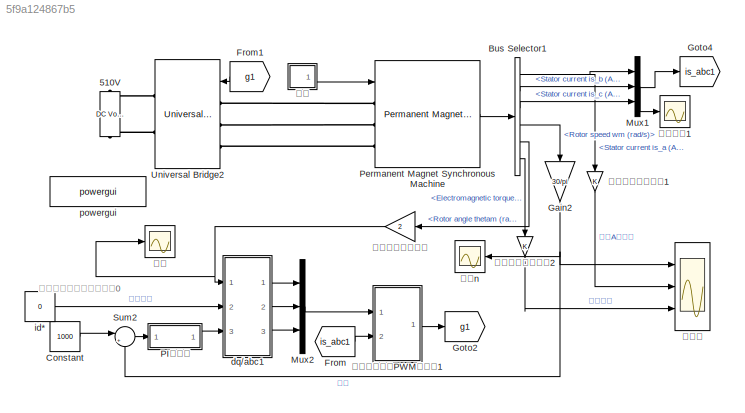
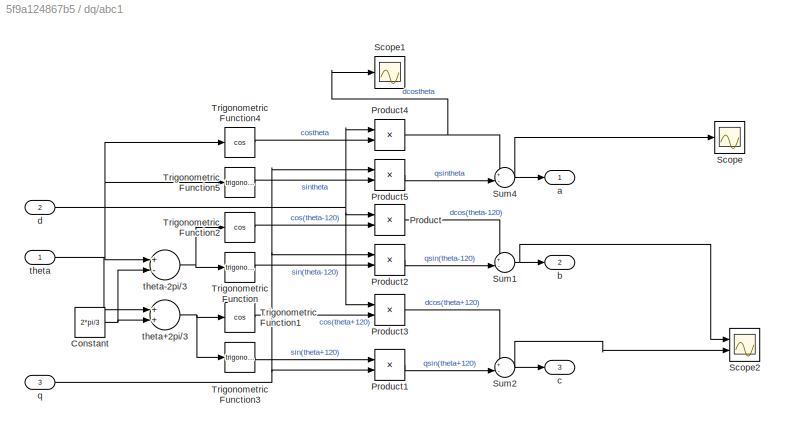
MODEL slx_5f9a124867b5
KIND model
CONFIG AbsTol = auto
CONFIG EnableMultiTasking = off
CONFIG FixedStep = auto
CONFIG MaxStep = 1e-4
CONFIG MinStep = auto
CONFIG RelTol = 1e-3
CONFIG SampleTimeConstraint = Unconstrained
CONFIG Solver = ode23tb
CONFIG SolverName = ode23tb
CONFIG StartTime = 0.0
CONFIG StopTime = 6
BLOCK [Reference] 510V  REF=powerlib/Electrical
Sources/DC Voltage Source
  Ports = [0, 0, 0, 0, 0, 1, 1]
  SourceBlock = powerlib/Electrical\nSources/DC Voltage Source
  SourceProductBaseCode = PS
  SourceProductName = Simscape Power Systems
  SourceType = DC Voltage Source
BLOCK [BusSelector] Bus Selector1
  OutputAsBus = off
  OutputSignals = Stator current is_a (A),Stator current is_b (A),Stator current is_c (A),Rotor speed wm (rad/s),Rotor angle thetam (rad),Electromagnetic torque Te (N*m)
  Ports = [1, 6]
BLOCK [Constant] Constant
  Value = 1000
BLOCK [From] From
  GotoTag = is_abc1
BLOCK [From] From1
  GotoTag = g1
BLOCK [Gain] Gain2
  Gain = 30/pi
  OutDataTypeStr = Inherit: Inherit via internal rule
  ParamDataTypeStr = Inherit: Inherit via internal rule
  SaturateOnIntegerOverflow = off
BLOCK [Goto] Goto2
  GotoTag = g1
BLOCK [Goto] Goto4
  GotoTag = is_abc1
BLOCK [Mux] Mux1
  DisplayOption = bar
  Inputs = 3
  Ports = [3, 1]
BLOCK [Mux] Mux2
  DisplayOption = bar
  Inputs = 3
  Ports = [3, 1]
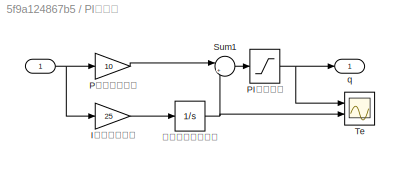
BLOCK [SubSystem] PI调节器
  Ports = [1, 1]
  RequestExecContextInheritance = off
  Variant = off
BLOCK [Inport] PI调节器/  
  IconDisplay = Port number
BLOCK [Gain] PI调节器/I积分放大倍数
  Gain = 25
  OutDataTypeStr = Inherit: Inherit via internal rule
  ParamDataTypeStr = Inherit: Inherit via internal rule
  SaturateOnIntegerOverflow = off
BLOCK [Saturate] PI调节器/PI输出限幅
  InputPortMap = u0
  LowerLimit = -500
  Ports = [1, 1]
  UpperLimit = 500
BLOCK [Gain] PI调节器/P比例放大倍数
  Gain = 10
  OutDataTypeStr = Inherit: Inherit via internal rule
  ParamDataTypeStr = Inherit: Inherit via internal rule
  SaturateOnIntegerOverflow = off
BLOCK [Sum] PI调节器/Sum1
  IconShape = round
  InputSameDT = off
  Inputs = |++
  OutDataTypeStr = Inherit: Inherit via internal rule
  Ports = [2, 1]
  SaturateOnIntegerOverflow = off
BLOCK [Scope] PI调节器/Te
  NumInputPorts = 2
  Ports = [2]
  ScopeSpecificationString = Simulink.scopes.TimeScopeBlockCfg('CurrentConfiguration', extmgr.ConfigurationSet(extmgr.Configuration('Core','General UI',true),extmgr.Configuration('Core','Source UI',true),extmgr.Configuration('Sources','WiredSimulink',true,'DataLoggingVariableName','ScopeData1'),extmgr.Configuration('Visuals','Time Domain',true,'SerializedDisplays',{struct('MinYLimReal','-225.00000','MaxYLimReal','2025.00000',...<+1465ch>
BLOCK [Outport] PI调节器/q
  IconDisplay = Port number
BLOCK [Integrator] PI调节器/带限幅的连续积分
  LimitOutput = on
  LowerSaturationLimit = -510
  Ports = [1, 1]
  UpperSaturationLimit = 510
BLOCK [Reference] Permanent Magnet Synchronous Machine  REF=powerlib/Machines/Permanent Magnet
Synchronous Machine
  Ports = [1, 1, 0, 0, 0, 3]
  SourceBlock = powerlib/Machines/Permanent Magnet\nSynchronous Machine
  SourceProductBaseCode = PS
  SourceProductName = Simscape Power Systems
  SourceType = Permanent Magnet Synchronous Machine
BLOCK [Sum] Sum2
  IconShape = round
  InputSameDT = off
  Inputs = |+-
  OutDataTypeStr = Inherit: Inherit via internal rule
  Ports = [2, 1]
  SaturateOnIntegerOverflow = off
BLOCK [Reference] Universal Bridge2  REF=powerlib/Power
Electronics/Universal Bridge
  Ports = [1, 0, 0, 0, 0, 3, 2]
  SourceBlock = powerlib/Power\nElectronics/Universal Bridge
  SourceProductBaseCode = PS
  SourceProductName = Simscape Power Systems
  SourceType = Universal Bridge
BLOCK [SubSystem] dq//abc1
  Ports = [3, 3]
  RequestExecContextInheritance = off
  Variant = off
BLOCK [Constant] dq//abc1/Constant
  Value = 2*pi/3
BLOCK [Product] dq//abc1/Product
  InputSameDT = off
  OutDataTypeStr = Inherit: Inherit via internal rule
  Ports = [2, 1]
  RndMeth = Floor
  SaturateOnIntegerOverflow = off
BLOCK [Product] dq//abc1/Product1
  InputSameDT = off
  OutDataTypeStr = Inherit: Inherit via internal rule
  Ports = [2, 1]
  RndMeth = Floor
  SaturateOnIntegerOverflow = off
BLOCK [Product] dq//abc1/Product2
  InputSameDT = off
  OutDataTypeStr = Inherit: Inherit via internal rule
  Ports = [2, 1]
  RndMeth = Floor
  SaturateOnIntegerOverflow = off
BLOCK [Product] dq//abc1/Product3
  InputSameDT = off
  OutDataTypeStr = Inherit: Inherit via internal rule
  Ports = [2, 1]
  RndMeth = Floor
  SaturateOnIntegerOverflow = off
BLOCK [Product] dq//abc1/Product4
  InputSameDT = off
  OutDataTypeStr = Inherit: Inherit via internal rule
  Ports = [2, 1]
  RndMeth = Floor
  SaturateOnIntegerOverflow = off
BLOCK [Product] dq//abc1/Product5
  InputSameDT = off
  OutDataTypeStr = Inherit: Inherit via internal rule
  Ports = [2, 1]
  RndMeth = Floor
  SaturateOnIntegerOverflow = off
BLOCK [Scope] dq//abc1/Scope
  NumInputPorts = 1
  Ports = [1]
  ScopeSpecificationString = Simulink.scopes.TimeScopeBlockCfg('CurrentConfiguration', extmgr.ConfigurationSet(extmgr.Configuration('Core','General UI',true),extmgr.Configuration('Core','Source UI',true),extmgr.Configuration('Sources','WiredSimulink',true,'DataLoggingVariableName','ScopeData1'),extmgr.Configuration('Visuals','Time Domain',true,'SerializedDisplays',{struct('MinYLimReal','-70.3942','MaxYLimReal','20.61362','YLa...<+1393ch>
BLOCK [Scope] dq//abc1/Scope1
  NumInputPorts = 1
  Ports = [1]
  ScopeSpecificationString = Simulink.scopes.TimeScopeBlockCfg('CurrentConfiguration', extmgr.ConfigurationSet(extmgr.Configuration('Core','General UI',true),extmgr.Configuration('Core','Source UI',true),extmgr.Configuration('Sources','WiredSimulink',true,'DataLoggingVariableName','ScopeData6'),extmgr.Configuration('Visuals','Time Domain',true,'SerializedDisplays',{struct('MinYLimReal','-1.00000','MaxYLimReal','1.00000','YLab...<+1396ch>
BLOCK [Scope] dq//abc1/Scope2
  NumInputPorts = 2
  Ports = [2]
  ScopeSpecificationString = Simulink.scopes.TimeScopeBlockCfg('CurrentConfiguration', extmgr.ConfigurationSet(extmgr.Configuration('Core','General UI',true),extmgr.Configuration('Core','Source UI',true),extmgr.Configuration('Sources','WiredSimulink',true,'DataLoggingVariableName','ScopeData7'),extmgr.Configuration('Visuals','Time Domain',true,'SerializedDisplays',{struct('MinYLimReal','-11712.18035','MaxYLimReal','1284.68671...<+1444ch>
BLOCK [Sum] dq//abc1/Sum1
  IconShape = round
  InputSameDT = off
  Inputs = +-|
  OutDataTypeStr = Inherit: Inherit via internal rule
  Ports = [2, 1]
  SaturateOnIntegerOverflow = off
BLOCK [Sum] dq//abc1/Sum2
  IconShape = round
  InputSameDT = off
  Inputs = +-|
  OutDataTypeStr = Inherit: Inherit via internal rule
  Ports = [2, 1]
  SaturateOnIntegerOverflow = off
BLOCK [Sum] dq//abc1/Sum4
  IconShape = round
  InputSameDT = off
  Inputs = +-|
  OutDataTypeStr = Inherit: Inherit via internal rule
  Ports = [2, 1]
  SaturateOnIntegerOverflow = off
BLOCK [Trigonometry] dq//abc1/Trigonometric Function
  Ports = [1, 1]
BLOCK [Trigonometry] dq//abc1/Trigonometric Function1
  Operator = cos
  Ports = [1, 1]
BLOCK [Trigonometry] dq//abc1/Trigonometric Function2
  Operator = cos
  Ports = [1, 1]
BLOCK [Trigonometry] dq//abc1/Trigonometric Function3
  Ports = [1, 1]
BLOCK [Trigonometry] dq//abc1/Trigonometric Function4
  Operator = cos
  Ports = [1, 1]
BLOCK [Trigonometry] dq//abc1/Trigonometric Function5
  Ports = [1, 1]
BLOCK [Outport] dq//abc1/a
  IconDisplay = Port number
BLOCK [Outport] dq//abc1/b
  IconDisplay = Port number
  Port = 2
BLOCK [Outport] dq//abc1/c
  IconDisplay = Port number
  Port = 3
BLOCK [Inport] dq//abc1/d
  IconDisplay = Port number
  Port = 2
BLOCK [Inport] dq//abc1/q
  IconDisplay = Port number
  Port = 3
BLOCK [Inport] dq//abc1/theta
  IconDisplay = Port number
BLOCK [Sum] dq//abc1/theta+2pi//3
  InputSameDT = off
  OutDataTypeStr = Inherit: Inherit via internal rule
  Ports = [2, 1]
  SaturateOnIntegerOverflow = off
BLOCK [Sum] dq//abc1/theta-2pi//3
  InputSameDT = off
  Inputs = +-
  OutDataTypeStr = Inherit: Inherit via internal rule
  Ports = [2, 1]
  SaturateOnIntegerOverflow = off
BLOCK [Constant] id*
  Value = 0
BLOCK [Reference] powergui  REF=powerlib/powergui
  Ports = []
  SourceBlock = powerlib/powergui
  SourceProductBaseCode = PS
  SourceProductName = Simscape Power Systems
  SourceType = PSB option menu block
BLOCK [Scope] 定子电流1
  NumInputPorts = 1
  Ports = [1]
  ScopeSpecificationString = Simulink.scopes.TimeScopeBlockCfg('CurrentConfiguration', extmgr.ConfigurationSet(extmgr.Configuration('Core','General UI',true),extmgr.Configuration('Core','Source UI',true),extmgr.Configuration('Sources','WiredSimulink',true,'DataLoggingVariableName','ScopeData1'),extmgr.Configuration('Visuals','Time Domain',true,'SerializedDisplays',{struct('MinYLimReal','-2507.4871','MaxYLimReal','2585.568','Y...<+1527ch>
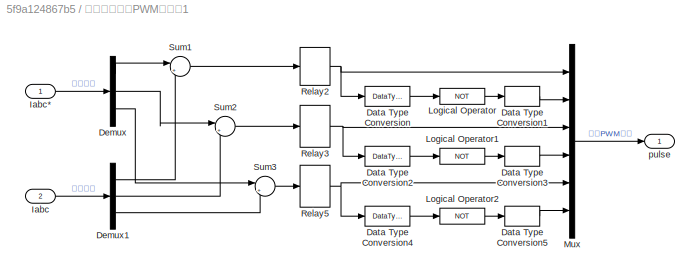
BLOCK [SubSystem] 电流滞环跟踪PWM发生器1
  Ports = [2, 1]
  RequestExecContextInheritance = off
  Variant = off
BLOCK [DataTypeConversion] 电流滞环跟踪PWM发生器1/Data Type Conversion
  RndMeth = Floor
  SaturateOnIntegerOverflow = off
BLOCK [DataTypeConversion] 电流滞环跟踪PWM发生器1/Data Type Conversion1
  RndMeth = Floor
  SaturateOnIntegerOverflow = off
BLOCK [DataTypeConversion] 电流滞环跟踪PWM发生器1/Data Type Conversion2
  RndMeth = Floor
  SaturateOnIntegerOverflow = off
BLOCK [DataTypeConversion] 电流滞环跟踪PWM发生器1/Data Type Conversion3
  RndMeth = Floor
  SaturateOnIntegerOverflow = off
BLOCK [DataTypeConversion] 电流滞环跟踪PWM发生器1/Data Type Conversion4
  RndMeth = Floor
  SaturateOnIntegerOverflow = off
BLOCK [DataTypeConversion] 电流滞环跟踪PWM发生器1/Data Type Conversion5
  RndMeth = Floor
  SaturateOnIntegerOverflow = off
BLOCK [Demux] 电流滞环跟踪PWM发生器1/Demux
  DisplayOption = bar
  Outputs = 3
  Ports = [1, 3]
BLOCK [Demux] 电流滞环跟踪PWM发生器1/Demux1
  DisplayOption = bar
  Outputs = 3
  Ports = [1, 3]
BLOCK [Inport] 电流滞环跟踪PWM发生器1/Iabc
  IconDisplay = Port number
  Port = 2
BLOCK [Inport] 电流滞环跟踪PWM发生器1/Iabc*
  IconDisplay = Port number
BLOCK [Logic] 电流滞环跟踪PWM发生器1/Logical Operator
  AllPortsSameDT = off
  Inputs = 1
  Operator = NOT
  Ports = [1, 1]
BLOCK [Logic] 电流滞环跟踪PWM发生器1/Logical Operator1
  AllPortsSameDT = off
  Inputs = 1
  Operator = NOT
  Ports = [1, 1]
BLOCK [Logic] 电流滞环跟踪PWM发生器1/Logical Operator2
  AllPortsSameDT = off
  Inputs = 1
  Operator = NOT
  Ports = [1, 1]
BLOCK [Mux] 电流滞环跟踪PWM发生器1/Mux
  DisplayOption = bar
  Inputs = 6
  Ports = [6, 1]
BLOCK [Relay] 电流滞环跟踪PWM发生器1/Relay2
  OffSwitchValue = -0.1
  OnSwitchValue = 0.1
  ZeroCross = off
BLOCK [Relay] 电流滞环跟踪PWM发生器1/Relay3
  OffSwitchValue = -0.1
  OnSwitchValue = 0.1
  ZeroCross = off
BLOCK [Relay] 电流滞环跟踪PWM发生器1/Relay5
  OffSwitchValue = -0.1
  OnSwitchValue = 0.1
  ZeroCross = off
BLOCK [Sum] 电流滞环跟踪PWM发生器1/Sum1
  IconShape = round
  InputSameDT = off
  Inputs = |+-
  OutDataTypeStr = Inherit: Inherit via internal rule
  Ports = [2, 1]
  SaturateOnIntegerOverflow = off
BLOCK [Sum] 电流滞环跟踪PWM发生器1/Sum2
  IconShape = round
  InputSameDT = off
  Inputs = |+-
  OutDataTypeStr = Inherit: Inherit via internal rule
  Ports = [2, 1]
  SaturateOnIntegerOverflow = off
BLOCK [Sum] 电流滞环跟踪PWM发生器1/Sum3
  IconShape = round
  InputSameDT = off
  Inputs = |+-
  OutDataTypeStr = Inherit: Inherit via internal rule
  Ports = [2, 1]
  SaturateOnIntegerOverflow = off
BLOCK [Outport] 电流滞环跟踪PWM发生器1/pulse
  IconDisplay = Port number
BLOCK [Gain] 电磁角度转换系数
  Gain = 2
  OutDataTypeStr = Inherit: Inherit via internal rule
  ParamDataTypeStr = Inherit: Inherit via internal rule
  SaturateOnIntegerOverflow = off
BLOCK [Gain] 电磁角度转换系数1
  OutDataTypeStr = Inherit: Inherit via internal rule
  ParamDataTypeStr = Inherit: Inherit via internal rule
  SaturateOnIntegerOverflow = off
BLOCK [Gain] 电磁角度转换系数2
  OutDataTypeStr = Inherit: Inherit via internal rule
  ParamDataTypeStr = Inherit: Inherit via internal rule
  SaturateOnIntegerOverflow = off
BLOCK [Scope] 示波器
  NumInputPorts = 3
  Ports = [3]
  ScopeSpecificationString = Simulink.scopes.TimeScopeBlockCfg('CurrentConfiguration', extmgr.ConfigurationSet(extmgr.Configuration('Core','General UI',true,'FigureColor',[1 1 1]),extmgr.Configuration('Core','Source UI',true),extmgr.Configuration('Sources','WiredSimulink',true,'DataLoggingVariableName','ScopeData2'),extmgr.Configuration('Visuals','Time Domain',true,'SerializedDisplays',{struct('MinYLimReal','-129.96632','MaxY...<+3171ch>
BLOCK [Scope] 角度
  NumInputPorts = 1
  Ports = [1]
  ScopeSpecificationString = Simulink.scopes.TimeScopeBlockCfg('CurrentConfiguration', extmgr.ConfigurationSet(extmgr.Configuration('Core','General UI',true),extmgr.Configuration('Core','Source UI',true),extmgr.Configuration('Sources','WiredSimulink',true,'DataLoggingVariableName','ScopeData3'),extmgr.Configuration('Visuals','Time Domain',true,'SerializedDisplays',{struct('MinYLimReal','-3.19602','MaxYLimReal','-1.39022','YLa...<+1439ch>
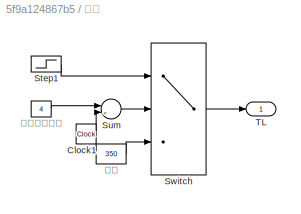
BLOCK [SubSystem] 负载
  Ports = [0, 1]
  RequestExecContextInheritance = off
  Variant = off
BLOCK [Clock] 负载/Clock1
BLOCK [Step] 负载/Step1
  After = 500
  Before = 200
  SampleTime = 0
  Time = 2
BLOCK [Sum] 负载/Sum
  IconShape = round
  InputSameDT = off
  Inputs = |+-
  OutDataTypeStr = Inherit: Inherit via internal rule
  Ports = [2, 1]
  SaturateOnIntegerOverflow = off
BLOCK [Switch] 负载/Switch
  InputSameDT = off
  SaturateOnIntegerOverflow = off
BLOCK [Outport] 负载/TL
  IconDisplay = Port number
BLOCK [Constant] 负载/负载
  Value = 350
BLOCK [Constant] 负载/负载切换时间
  Value = 4
BLOCK [Scope] 转速n
  NumInputPorts = 1
  Ports = [1]
  ScopeSpecificationString = Simulink.scopes.TimeScopeBlockCfg('CurrentConfiguration', extmgr.ConfigurationSet(extmgr.Configuration('Core','General UI',true,'FigureColor',[1 1 1]),extmgr.Configuration('Core','Source UI',true),extmgr.Configuration('Sources','WiredSimulink',true,'DataLoggingVariableName','ScopeData4'),extmgr.Configuration('Visuals','Time Domain',true,'SerializedDisplays',{struct('MinYLimReal','100.21823','MaxYL...<+1576ch>
ANNOTATION (root): 永磁同步电机励磁电流为0
NET Bus Selector1:1 -> Mux1:1, 电磁角度转换系数1:1
LINE Bus Selector1:2 -> Mux1:2
LINE Bus Selector1:3 -> Mux1:3
LINE Bus Selector1:4 -> Gain2:1
LINE Bus Selector1:5 -> 电磁角度转换系数:1
LINE Bus Selector1:6 -> 电磁角度转换系数2:1
LINE Constant:1 -> Sum2:1
LINE From1:1 -> Universal Bridge2:1
LINE From:1 -> 电流滞环跟踪PWM发生器1:2
NET Gain2:1 -> Sum2:2, 示波器:1, 转速n:1
NET Mux1:1 -> Goto4:1, 定子电流1:1
LINE Mux2:1 -> 电流滞环跟踪PWM发生器1:1
NET PI调节器/  :1 -> PI调节器/I积分放大倍数:1, PI调节器/P比例放大倍数:1
LINE PI调节器/I积分放大倍数:1 -> PI调节器/带限幅的连续积分:1
NET PI调节器/PI输出限幅:1 -> PI调节器/Te:1, PI调节器/q:1
LINE PI调节器/P比例放大倍数:1 -> PI调节器/Sum1:1
LINE PI调节器/Sum1:1 -> PI调节器/PI输出限幅:1
NET PI调节器/带限幅的连续积分:1 -> PI调节器/Sum1:2, PI调节器/Te:2
LINE PI调节器:1 -> dq//abc1:3
LINE Permanent Magnet Synchronous Machine:1 -> Bus Selector1:1
LINE Sum2:1 -> PI调节器:1
NET dq//abc1/Constant:1 -> dq//abc1/theta+2pi//3:2, dq//abc1/theta-2pi//3:2
LINE dq//abc1/Product1:1 -> dq//abc1/Sum2:2
LINE dq//abc1/Product2:1 -> dq//abc1/Sum1:2
LINE dq//abc1/Product3:1 -> dq//abc1/Sum2:1
NET dq//abc1/Product4:1 -> dq//abc1/Scope1:1, dq//abc1/Sum4:1
LINE dq//abc1/Product5:1 -> dq//abc1/Sum4:2
LINE dq//abc1/Product:1 -> dq//abc1/Sum1:1
NET dq//abc1/Sum1:1 -> dq//abc1/Scope2:1, dq//abc1/b:1
NET dq//abc1/Sum2:1 -> dq//abc1/Scope2:2, dq//abc1/c:1
NET dq//abc1/Sum4:1 -> dq//abc1/Scope:1, dq//abc1/a:1
LINE dq//abc1/Trigonometric Function1:1 -> dq//abc1/Product3:2
LINE dq//abc1/Trigonometric Function2:1 -> dq//abc1/Product:2
LINE dq//abc1/Trigonometric Function3:1 -> dq//abc1/Product1:1
LINE dq//abc1/Trigonometric Function4:1 -> dq//abc1/Product4:2
LINE dq//abc1/Trigonometric Function5:1 -> dq//abc1/Product5:2
LINE dq//abc1/Trigonometric Function:1 -> dq//abc1/Product2:2
NET dq//abc1/d:1 -> dq//abc1/Product3:1, dq//abc1/Product4:1, dq//abc1/Product:1
NET dq//abc1/q:1 -> dq//abc1/Product1:2, dq//abc1/Product2:1, dq//abc1/Product5:1
NET dq//abc1/theta+2pi//3:1 -> dq//abc1/Trigonometric Function1:1, dq//abc1/Trigonometric Function3:1
NET dq//abc1/theta-2pi//3:1 -> dq//abc1/Trigonometric Function2:1, dq//abc1/Trigonometric Function:1
NET dq//abc1/theta:1 -> dq//abc1/Trigonometric Function4:1, dq//abc1/Trigonometric Function5:1, dq//abc1/theta+2pi//3:1, dq//abc1/theta-2pi//3:1
LINE dq//abc1:1 -> Mux2:1
LINE dq//abc1:2 -> Mux2:2
LINE dq//abc1:3 -> Mux2:3
LINE id*:1 -> dq//abc1:2
LINE 电流滞环跟踪PWM发生器1/Data Type Conversion1:1 -> 电流滞环跟踪PWM发生器1/Mux:2
LINE 电流滞环跟踪PWM发生器1/Data Type Conversion2:1 -> 电流滞环跟踪PWM发生器1/Logical Operator1:1
LINE 电流滞环跟踪PWM发生器1/Data Type Conversion3:1 -> 电流滞环跟踪PWM发生器1/Mux:4
LINE 电流滞环跟踪PWM发生器1/Data Type Conversion4:1 -> 电流滞环跟踪PWM发生器1/Logical Operator2:1
LINE 电流滞环跟踪PWM发生器1/Data Type Conversion5:1 -> 电流滞环跟踪PWM发生器1/Mux:6
LINE 电流滞环跟踪PWM发生器1/Data Type Conversion:1 -> 电流滞环跟踪PWM发生器1/Logical Operator:1
LINE 电流滞环跟踪PWM发生器1/Demux1:1 -> 电流滞环跟踪PWM发生器1/Sum1:2
LINE 电流滞环跟踪PWM发生器1/Demux1:2 -> 电流滞环跟踪PWM发生器1/Sum2:2
LINE 电流滞环跟踪PWM发生器1/Demux1:3 -> 电流滞环跟踪PWM发生器1/Sum3:2
LINE 电流滞环跟踪PWM发生器1/Demux:1 -> 电流滞环跟踪PWM发生器1/Sum1:1
LINE 电流滞环跟踪PWM发生器1/Demux:2 -> 电流滞环跟踪PWM发生器1/Sum2:1
LINE 电流滞环跟踪PWM发生器1/Demux:3 -> 电流滞环跟踪PWM发生器1/Sum3:1
LINE 电流滞环跟踪PWM发生器1/Iabc*:1 -> 电流滞环跟踪PWM发生器1/Demux:1
LINE 电流滞环跟踪PWM发生器1/Iabc:1 -> 电流滞环跟踪PWM发生器1/Demux1:1
LINE 电流滞环跟踪PWM发生器1/Logical Operator1:1 -> 电流滞环跟踪PWM发生器1/Data Type Conversion3:1
LINE 电流滞环跟踪PWM发生器1/Logical Operator2:1 -> 电流滞环跟踪PWM发生器1/Data Type Conversion5:1
LINE 电流滞环跟踪PWM发生器1/Logical Operator:1 -> 电流滞环跟踪PWM发生器1/Data Type Conversion1:1
LINE 电流滞环跟踪PWM发生器1/Mux:1 -> 电流滞环跟踪PWM发生器1/pulse:1
NET 电流滞环跟踪PWM发生器1/Relay2:1 -> 电流滞环跟踪PWM发生器1/Data Type Conversion:1, 电流滞环跟踪PWM发生器1/Mux:1
NET 电流滞环跟踪PWM发生器1/Relay3:1 -> 电流滞环跟踪PWM发生器1/Data Type Conversion2:1, 电流滞环跟踪PWM发生器1/Mux:3
NET 电流滞环跟踪PWM发生器1/Relay5:1 -> 电流滞环跟踪PWM发生器1/Data Type Conversion4:1, 电流滞环跟踪PWM发生器1/Mux:5
LINE 电流滞环跟踪PWM发生器1/Sum1:1 -> 电流滞环跟踪PWM发生器1/Relay2:1
LINE 电流滞环跟踪PWM发生器1/Sum2:1 -> 电流滞环跟踪PWM发生器1/Relay3:1
LINE 电流滞环跟踪PWM发生器1/Sum3:1 -> 电流滞环跟踪PWM发生器1/Relay5:1
LINE 电流滞环跟踪PWM发生器1:1 -> Goto2:1
LINE 电磁角度转换系数1:1 -> 示波器:2
LINE 电磁角度转换系数2:1 -> 示波器:3
NET 电磁角度转换系数:1 -> dq//abc1:1, 角度:1
LINE 负载/Clock1:1 -> 负载/Sum:2
LINE 负载/Step1:1 -> 负载/Switch:1
LINE 负载/Sum:1 -> 负载/Switch:2
LINE 负载/Switch:1 -> 负载/TL:1
LINE 负载/负载:1 -> 负载/Switch:3
LINE 负载/负载切换时间:1 -> 负载/Sum:1
LINE 负载:1 -> Permanent Magnet Synchronous Machine:1
PLINE 510V:LConn1 -- Universal Bridge2:RConn2
PLINE 510V:RConn1 -- Universal Bridge2:RConn1
PLINE Permanent Magnet Synchronous Machine:LConn1 -- Universal Bridge2:LConn1
PLINE Permanent Magnet Synchronous Machine:LConn2 -- Universal Bridge2:LConn2
PLINE Permanent Magnet Synchronous Machine:LConn3 -- Universal Bridge2:LConn3
note: NET lines group one-source signal fan-out (src -> all destinations, sorted); 1:1 wires keep LINE
